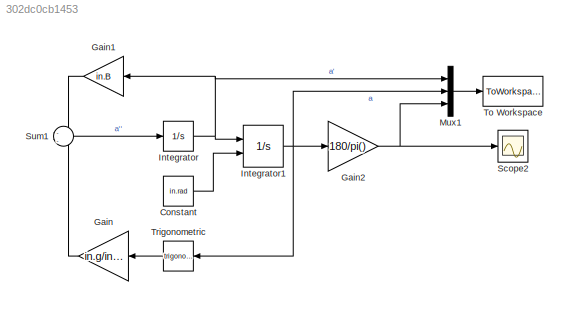
MODEL slx_302dc0cb1453
KIND model
BLOCK [Constant] Constant
  Value = in.rad
BLOCK [Gain] Gain
  Gain = in.g/in.l
  OutDataTypeStr = Inherit: Inherit via internal rule
  ParamDataTypeStr = Inherit: Inherit via internal rule
  SaturateOnIntegerOverflow = off
BLOCK [Gain] Gain1
  Gain = in.B
  OutDataTypeStr = Inherit: Inherit via internal rule
  ParamDataTypeStr = Inherit: Inherit via internal rule
  SaturateOnIntegerOverflow = off
BLOCK [Gain] Gain2
  Gain = 180/pi()
  OutDataTypeStr = Inherit: Inherit via internal rule
  ParamDataTypeStr = Inherit: Inherit via internal rule
  SaturateOnIntegerOverflow = off
BLOCK [Integrator] Integrator
  Ports = [1, 1]
BLOCK [Integrator] Integrator1
  InitialConditionSource = external
  Ports = [2, 1]
BLOCK [Mux] Mux1
  DisplayOption = bar
  Inputs = 3
  Ports = [3, 1]
BLOCK [Scope] Scope2
  Floating = off
  LimitDataPoints = off
  NumInputPorts = 1
  Ports = [1]
  SaveName = ScopeData1
  ShowLegends = off
  YMax = 10
  YMin = -10
BLOCK [Sum] Sum1
  IconShape = round
  InputSameDT = off
  Inputs = -|-
  OutDataTypeStr = Inherit: Inherit via internal rule
  Ports = [2, 1]
  SaturateOnIntegerOverflow = off
BLOCK [ToWorkspace] To Workspace
  FixptAsFi = on
  MaxDataPoints = inf
  Ports = [1]
  SampleTime = -1
  Save2DSignal = 3-D array (concatenate along third dimension)
  SaveFormat = Timeseries
  VariableName = simout
BLOCK [Trigonometry] Trigonometric
  Ports = [1, 1]
LINE Constant:1 -> Integrator1:2
LINE Gain1:1 -> Sum1:1
NET Gain2:1 -> Mux1:3, Scope2:1
LINE Gain:1 -> Sum1:2
NET Integrator1:1 -> Gain2:1, Mux1:2, Trigonometric:1
NET Integrator:1 -> Gain1:1, Integrator1:1, Mux1:1
LINE Mux1:1 -> To Workspace:1
LINE Sum1:1 -> Integrator:1
LINE Trigonometric:1 -> Gain:1
note: NET lines group one-source signal fan-out (src -> all destinations, sorted); 1:1 wires keep LINE
